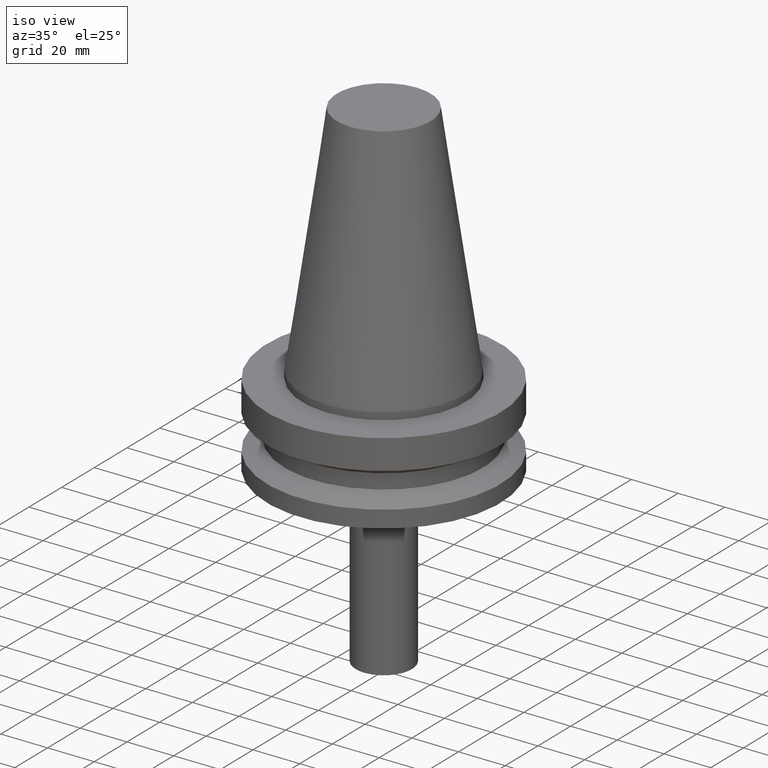
[diagram: clean part render]
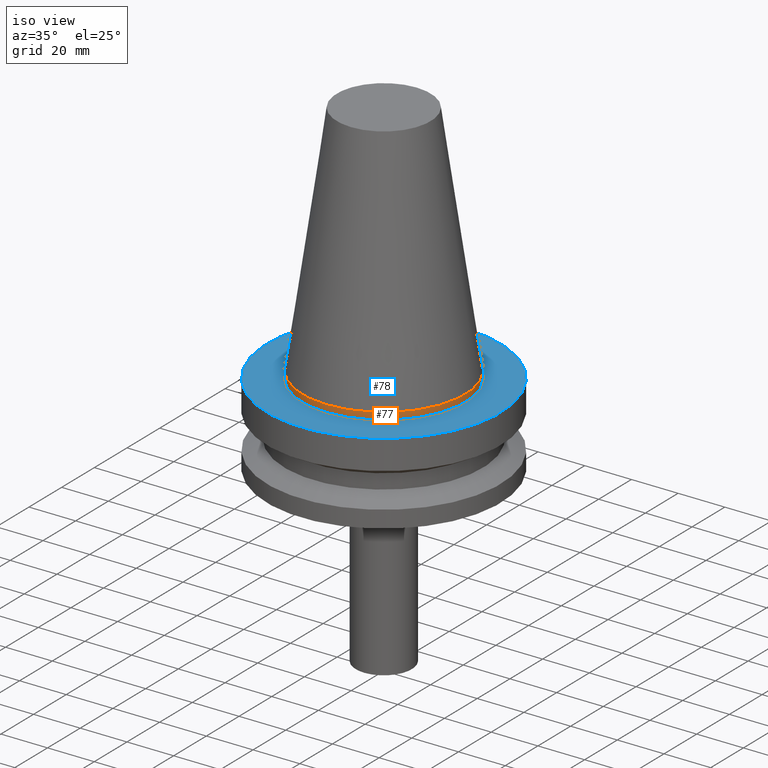
[diagram: same view with the hole feature highlighted: cylindrical wall and planar end face, labeled with their STEP entity ids]
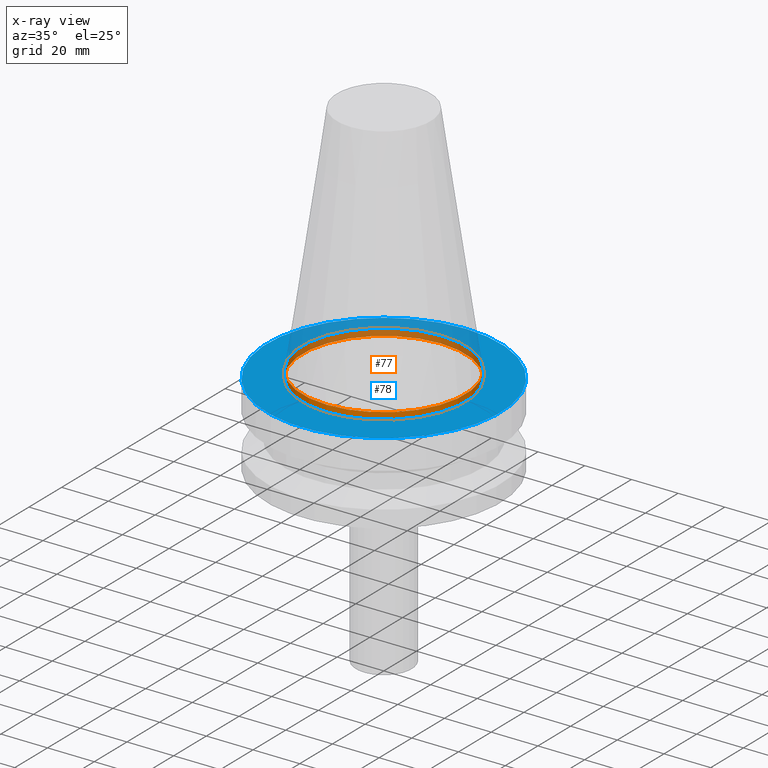
[diagram: x-ray of the same camera — body ghosted, the hole faces saturated]
A machine part, iso view. The highlighted faces form one hole feature of diameter 69.85 mm: the cylindrical wall (entity #77, orange) and its adjacent planar end face (entity #78, blue) — they share a circular edge in the B-rep.
The next image is the same camera in x-ray (body ghosted, the hole faces saturated) — the bore reads through the body.
Wall:
#77=ADVANCED_FACE('',(#94,#95),#96,.T.);
#94=FACE_BOUND('',#131,.T.);
#95=FACE_BOUND('',#132,.T.);
#96=CYLINDRICAL_SURFACE('',#133,34.925);
#131=EDGE_LOOP('',(#172));
#132=EDGE_LOOP('',(#173));
#133=AXIS2_PLACEMENT_3D('',#174,#175,#176);
#172=ORIENTED_EDGE('',*,*,#228,.F.);
#173=ORIENTED_EDGE('',*,*,#227,.T.);
#174=CARTESIAN_POINT('',(9.18485099360515E-017,1.83697019872103E-016,-1.5));
#175=DIRECTION('',(-6.12323399573677E-017,-1.22464679914705E-016,1.0));
#176=DIRECTION('',(-1.23259516440742E-032,1.0,1.22464679914705E-016));
#227=EDGE_CURVE('',#240,#240,#241,.T.);
#228=EDGE_CURVE('',#242,#242,#243,.T.);
#240=VERTEX_POINT('',#264);
#241=CIRCLE('',#265,34.925);
#242=VERTEX_POINT('',#266);
#243=CIRCLE('',#267,34.925);
#264=CARTESIAN_POINT('',(-4.30483861169435E-031,34.925,4.27707894602213E-015));
#265=AXIS2_PLACEMENT_3D('',#289,#290,#291);
#266=CARTESIAN_POINT('',(1.83697019872103E-016,34.925,-3.0));
#267=AXIS2_PLACEMENT_3D('',#292,#293,#294);
#289=CARTESIAN_POINT('',(0.0,0.0,0.0));
#290=DIRECTION('',(6.12323399573677E-017,1.22464679914705E-016,-1.0));
#291=DIRECTION('',(-1.23259516440742E-032,1.0,1.22464679914705E-016));
#292=CARTESIAN_POINT('',(1.83697019872103E-016,3.67394039744206E-016,-3.0));
#293=DIRECTION('',(6.12323399573677E-017,1.22464679914705E-016,-1.0));
#294=DIRECTION('',(-1.23259516440742E-032,1.0,1.22464679914705E-016));
End face:
#78=ADVANCED_FACE('',(#97,#98),#99,.T.);
#97=FACE_OUTER_BOUND('',#134,.T.);
#98=FACE_BOUND('',#135,.T.);
#99=PLANE('',#136);
#134=EDGE_LOOP('',(#177));
#135=EDGE_LOOP('',(#178));
#136=AXIS2_PLACEMENT_3D('',#179,#180,#181);
#177=ORIENTED_EDGE('',*,*,#229,.F.);
#178=ORIENTED_EDGE('',*,*,#228,.T.);
#179=CARTESIAN_POINT('',(1.83697019872102E-016,42.4625,-2.99999999999999));
#180=DIRECTION('',(-6.12323399573677E-017,-1.22464679914735E-016,1.0));
#181=DIRECTION('',(1.23259516440783E-032,-1.0,-1.22464679914735E-016));
#228=EDGE_CURVE('',#242,#242,#243,.T.);
#229=EDGE_CURVE('',#244,#244,#245,.T.);
#242=VERTEX_POINT('',#266);
#243=CIRCLE('',#267,34.925);
#244=VERTEX_POINT('',#268);
#245=CIRCLE('',#269,50.0);
#266=CARTESIAN_POINT('',(1.83697019872103E-016,34.925,-3.0));
#267=AXIS2_PLACEMENT_3D('',#292,#293,#294);
#268=CARTESIAN_POINT('',(1.83697019872102E-016,50.0,-2.99999999999999));
#269=AXIS2_PLACEMENT_3D('',#295,#296,#297);
#292=CARTESIAN_POINT('',(1.83697019872103E-016,3.67394039744206E-016,-3.0));
#293=DIRECTION('',(6.12323399573677E-017,1.22464679914705E-016,-1.0));
#294=DIRECTION('',(-1.23259516440742E-032,1.0,1.22464679914705E-016));
#295=CARTESIAN_POINT('',(1.83697019872103E-016,3.67394039744206E-016,-3.0));
#296=DIRECTION('',(6.12323399573677E-017,1.22464679914672E-016,-1.0));
#297=DIRECTION('',(-1.23259516440783E-032,1.0,1.22464679914672E-016));